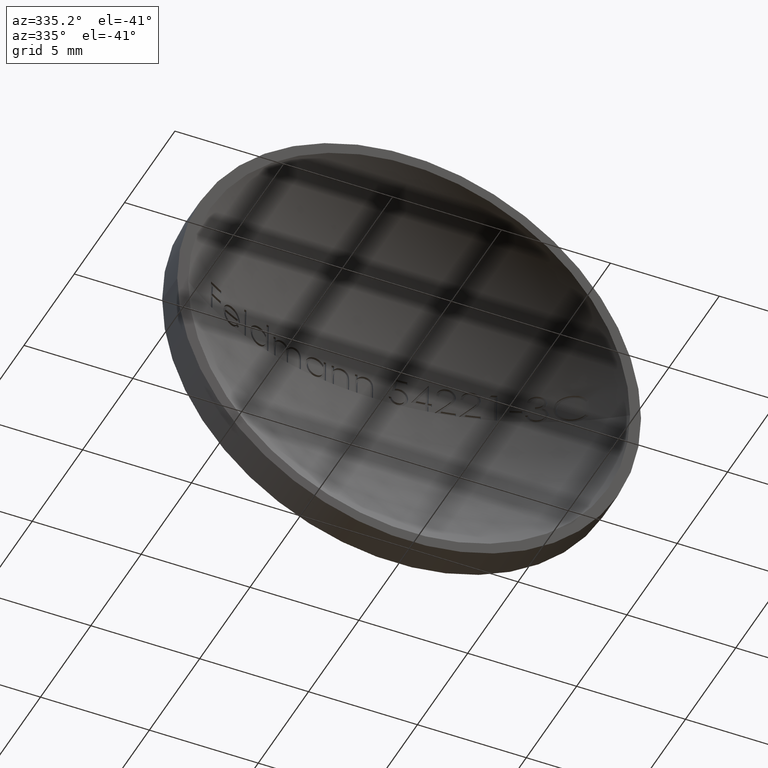
[diagram: clean part render]
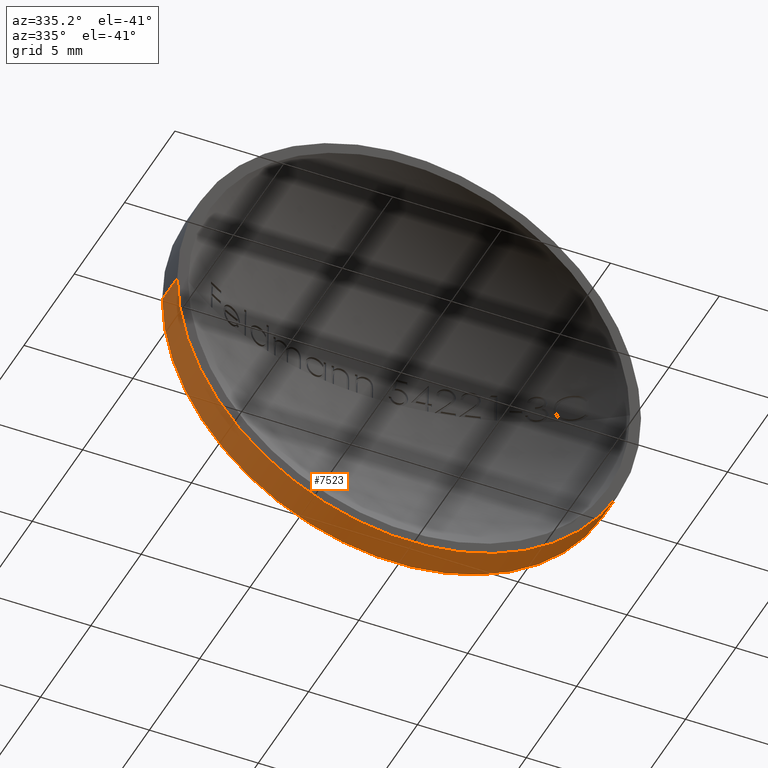
[diagram: same view with one face highlighted and labeled with its STEP entity id]
A machine part, auxiliary view. The second image highlights one B-rep face of the part: STEP entity #7523.
In plain terms, the highlighted cylindrical surface (partial cylindrical patch) has radius 10.65 mm, axis along (-0, -1, -0).
Its self-contained STEP definition (entity closure, byte-faithful):
#121 = CARTESIAN_POINT ( 'NONE',  ( -1.635541477367388300E-014, 4.510281037539698400E-014, 0.0000000000000000000 ) ) ;
#869 = DIRECTION ( 'NONE',  ( -4.672975649621174500E-015, -1.000000000000000000, -0.0000000000000000000 ) ) ;
#1087 = ORIENTED_EDGE ( 'NONE', *, *, #8002, .T. ) ;
#1191 = DIRECTION ( 'NONE',  ( -4.672975649621174500E-015, -1.000000000000000000, -0.0000000000000000000 ) ) ;
#1501 = ORIENTED_EDGE ( 'NONE', *, *, #4845, .F. ) ;
#1534 = VERTEX_POINT ( 'NONE', #8426 ) ;
#1947 = LINE ( 'NONE', #5520, #8655 ) ;
#2002 = DIRECTION ( 'NONE',  ( -4.672975649621174500E-015, -1.000000000000000000, -0.0000000000000000000 ) ) ;
#2077 = CARTESIAN_POINT ( 'NONE',  ( 0.0000000000000000000, 3.499999999999996000, 0.0000000000000000000 ) ) ;
#2120 = DIRECTION ( 'NONE',  ( 1.000000000000000000, -4.682938960970248100E-015, 0.0000000000000000000 ) ) ;
#2160 = CARTESIAN_POINT ( 'NONE',  ( 10.65000000000000000, -4.664380293068598100E-015, 0.0000000000000000000 ) ) ;
#2558 = AXIS2_PLACEMENT_3D ( 'NONE', #121, #869, #8286 ) ;
#3110 = AXIS2_PLACEMENT_3D ( 'NONE', #8409, #2002, #10347 ) ;
#3440 = CARTESIAN_POINT ( 'NONE',  ( -10.65000000000002000, 1.500000000000095900, 1.304248841091932800E-015 ) ) ;
#4119 = LINE ( 'NONE', #5921, #10274 ) ;
#4233 = VERTEX_POINT ( 'NONE', #3440 ) ;
#4335 = ORIENTED_EDGE ( 'NONE', *, *, #5194, .F. ) ;
#4845 = EDGE_CURVE ( 'NONE', #6335, #9023, #6817, .T. ) ;
#5194 = EDGE_CURVE ( 'NONE', #4233, #6335, #1947, .T. ) ;
#5418 = FACE_OUTER_BOUND ( 'NONE', #6766, .T. ) ;
#5520 = CARTESIAN_POINT ( 'NONE',  ( -10.65000000000001300, 3.500000000000046200, 1.304248841091932800E-015 ) ) ;
#5568 = CIRCLE ( 'NONE', #3110, 10.65000000000001100 ) ;
#5921 = CARTESIAN_POINT ( 'NONE',  ( 10.65000000000001300, 3.499999999999946300, 0.0000000000000000000 ) ) ;
#6335 = VERTEX_POINT ( 'NONE', #8876 ) ;
#6446 = DIRECTION ( 'NONE',  ( -4.672975649621174500E-015, -1.000000000000000000, -0.0000000000000000000 ) ) ;
#6481 = AXIS2_PLACEMENT_3D ( 'NONE', #2077, #1191, #2120 ) ;
#6585 = CYLINDRICAL_SURFACE ( 'NONE', #6481, 10.65000000000001300 ) ;
#6757 = DIRECTION ( 'NONE',  ( -4.672975649621174500E-015, -1.000000000000000000, -0.0000000000000000000 ) ) ;
#6766 = EDGE_LOOP ( 'NONE', ( #4335, #10583, #1087, #1501 ) ) ;
#6817 = CIRCLE ( 'NONE', #2558, 10.65000000000001500 ) ;
#7523 = ADVANCED_FACE ( 'NONE', ( #5418 ), #6585, .T. ) ;
#7871 = EDGE_CURVE ( 'NONE', #4233, #1534, #5568, .T. ) ;
#8002 = EDGE_CURVE ( 'NONE', #1534, #9023, #4119, .T. ) ;
#8286 = DIRECTION ( 'NONE',  ( 1.000000000000000000, -4.672975649621175200E-015, 0.0000000000000000000 ) ) ;
#8409 = CARTESIAN_POINT ( 'NONE',  ( -9.345951299242115400E-015, 1.500000000000046000, 0.0000000000000000000 ) ) ;
#8426 = CARTESIAN_POINT ( 'NONE',  ( 10.65000000000000400, 1.499999999999996200, 0.0000000000000000000 ) ) ;
#8655 = VECTOR ( 'NONE', #6446, 1000.000000000000000 ) ;
#8876 = CARTESIAN_POINT ( 'NONE',  ( -10.65000000000003100, 9.487000104386255700E-014, 1.304248841091933200E-015 ) ) ;
#9023 = VERTEX_POINT ( 'NONE', #2160 ) ;
#10274 = VECTOR ( 'NONE', #6757, 1000.000000000000000 ) ;
#10347 = DIRECTION ( 'NONE',  ( 1.000000000000000000, -4.682938960970248900E-015, 0.0000000000000000000 ) ) ;
#10583 = ORIENTED_EDGE ( 'NONE', *, *, #7871, .T. ) ;